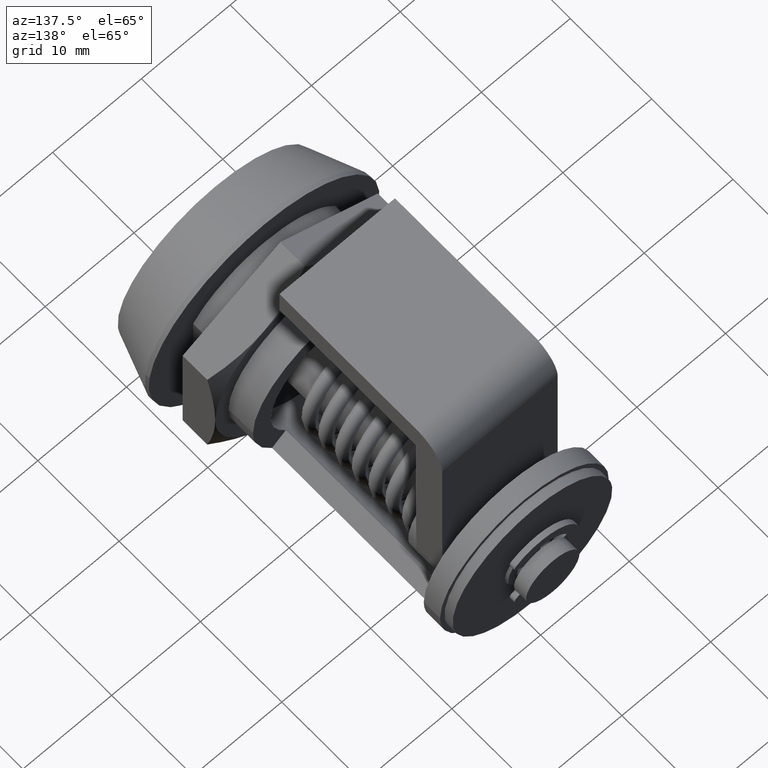
[diagram: clean part render]
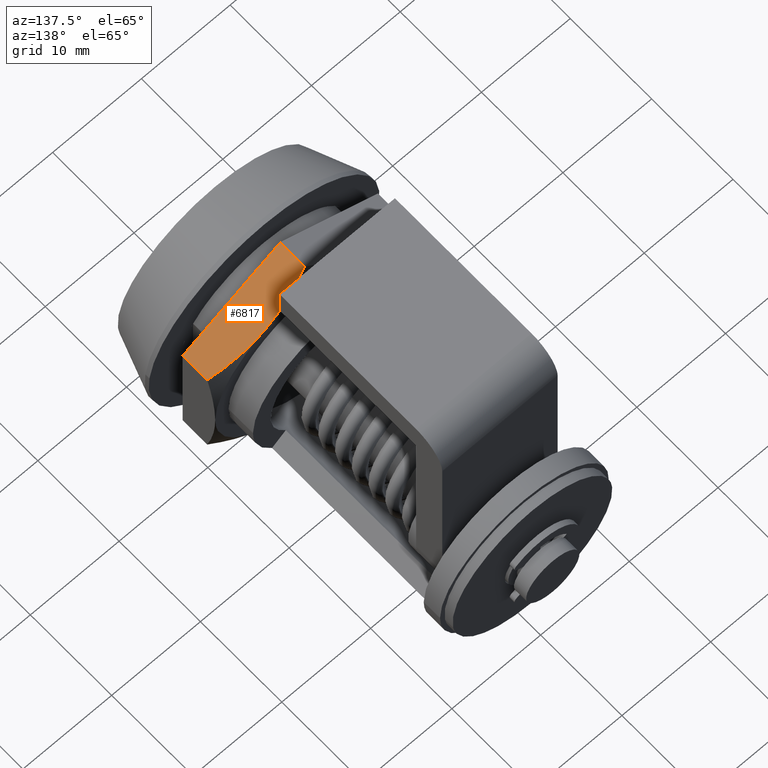
[diagram: same view with one face highlighted and labeled with its STEP entity id]
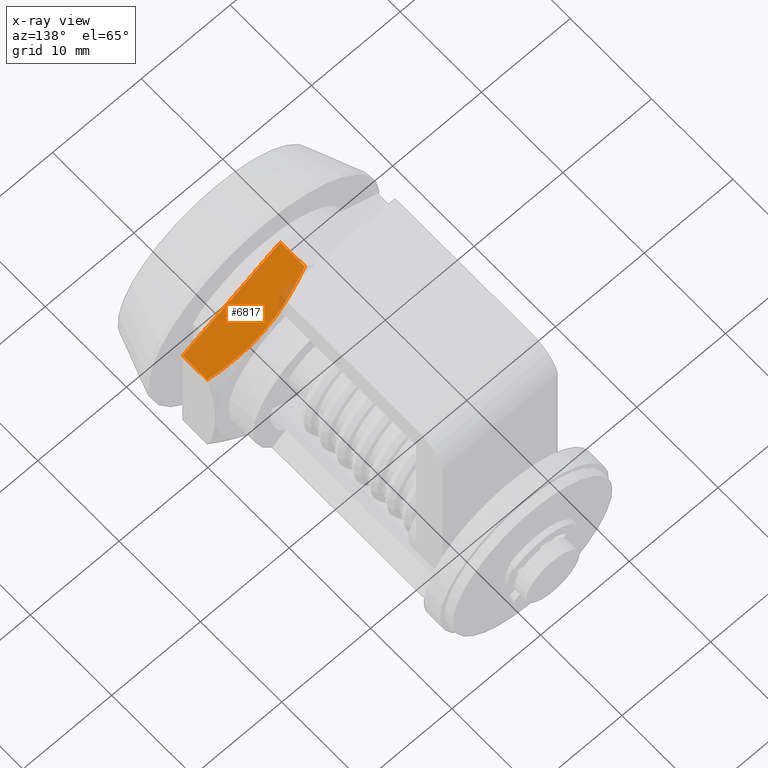
[diagram: x-ray of the same camera — body ghosted, the highlighted face saturated]
A machine part, auxiliary view. The second image highlights one B-rep face of the part: STEP entity #6817.
The next image is the same camera in x-ray: the body ghosted, the highlighted face saturated — about 3% of this face is hidden behind the body in this view.
In plain terms, the highlighted face is a freeform B-spline surface patch.
Its self-contained STEP definition (entity closure, byte-faithful):
#6759=CARTESIAN_POINT('',(-0.548105232915542,7.800200007752882,13.018154625939671));
#6760=CARTESIAN_POINT('',(11.548105331241221,7.800200007752882,6.034404200549367));
#6761=CARTESIAN_POINT('',(-0.548105232915542,12.199800099535580,13.018154625939671));
#6762=CARTESIAN_POINT('',(11.548105331241221,12.199800099535580,6.034404200549367));
#6763=B_SPLINE_SURFACE_WITH_KNOTS('',1,1,((#6759,#6761),(#6760,#6762)),.UNSPECIFIED.,.F.,.F.,.U.,(2,2),(2,2),(0.0,13.967500850780610),(0.0,4.399600091782699),.UNSPECIFIED.);
#6764=CARTESIAN_POINT('',(0.001222795020820,8.000000000000101,12.700999941137200));
#6765=VERTEX_POINT('',#6764);
#6766=CARTESIAN_POINT('',(10.998777204979060,8.000000000000119,6.351558942120260));
#6767=VERTEX_POINT('',#6766);
#6768=CARTESIAN_POINT('',(0.001222795020820,8.000000000000101,12.700999941137200));
#6769=CARTESIAN_POINT('',(10.998777204979060,8.000000000000119,6.351558942120260));
#6770=QUASI_UNIFORM_CURVE('',1,(#6768,#6769),.UNSPECIFIED.,.F.,.U.);
#6771=EDGE_CURVE('',#6765,#6767,#6770,.T.);
#6772=ORIENTED_EDGE('',*,*,#6771,.T.);
#6773=CARTESIAN_POINT('',(10.998777204979060,11.018000000000001,6.351558942120260));
#6774=VERTEX_POINT('',#6773);
#6775=CARTESIAN_POINT('',(10.998777204979060,11.018000000000001,6.351558942120260));
#6776=CARTESIAN_POINT('',(10.998777204979060,8.000000000000119,6.351558942120260));
#6777=QUASI_UNIFORM_CURVE('',1,(#6775,#6776),.UNSPECIFIED.,.F.,.U.);
#6778=EDGE_CURVE('',#6774,#6767,#6777,.T.);
#6779=ORIENTED_EDGE('',*,*,#6778,.F.);
#6780=CARTESIAN_POINT('',(5.499999999999940,12.0,9.526279441628731));
#6781=VERTEX_POINT('',#6780);
#6782=CARTESIAN_POINT('',(5.499999999999940,12.0,9.526279441628731));
#6783=CARTESIAN_POINT('',(5.730271455595420,11.999998713089020,9.393332154753995));
#6784=CARTESIAN_POINT('',(5.961659925944741,11.994392313507859,9.259739959110441));
#6785=CARTESIAN_POINT('',(6.425883957174248,11.971971308882710,8.991720089715795));
#6786=CARTESIAN_POINT('',(6.658938129684140,11.955013493650620,8.857166200481441));
#6787=CARTESIAN_POINT('',(7.355769310619686,11.887887213976059,8.454850530588574));
#6788=CARTESIAN_POINT('',(7.817209531966056,11.821427917682890,8.188437894579330));
#6789=CARTESIAN_POINT('',(9.193317265739321,11.564793864068459,7.393941724051416));
#6790=CARTESIAN_POINT('',(10.099803789611720,11.317585622569320,6.870581485476914));
#6791=CARTESIAN_POINT('',(10.998777204979060,11.018000000000001,6.351558942120262));
#6792=B_SPLINE_CURVE_WITH_KNOTS('',3,(#6782,#6783,#6784,#6785,#6786,#6787,#6788,#6789,#6790,#6791),.UNSPECIFIED.,.F.,.U.,(4,2,2,2,4),(0.500937718883551,0.562499999999999,0.625000000000000,0.750000000000000,1.0),.UNSPECIFIED.);
#6793=EDGE_CURVE('',#6781,#6774,#6792,.T.);
#6794=ORIENTED_EDGE('',*,*,#6793,.F.);
#6795=CARTESIAN_POINT('',(0.001222795020822,11.018000000000001,12.700999941137200));
#6796=VERTEX_POINT('',#6795);
#6797=CARTESIAN_POINT('',(0.001222795020823,11.018000000000001,12.700999941137200));
#6798=CARTESIAN_POINT('',(0.899076741923492,11.317212556301500,12.182623723199990));
#6799=CARTESIAN_POINT('',(1.803473457125797,11.563809640022860,11.660470036223710));
#6800=CARTESIAN_POINT('',(3.174205661515197,11.820017629843250,10.869077429032600));
#6801=CARTESIAN_POINT('',(3.633478220040345,11.886427037365580,10.603916293736701));
#6802=CARTESIAN_POINT('',(4.557368315081435,11.976262740363961,10.070508098663110));
#6803=CARTESIAN_POINT('',(5.021990466089561,11.999651927130650,9.802258374707099));
#6804=CARTESIAN_POINT('',(5.492985253362246,11.999998708657820,9.530329407488305));
#6805=CARTESIAN_POINT('',(5.496492497190114,11.999999989976580,9.528304499320171));
#6806=CARTESIAN_POINT('',(5.499999999999940,12.0,9.526279441628731));
#6807=B_SPLINE_CURVE_WITH_KNOTS('',3,(#6797,#6798,#6799,#6800,#6801,#6802,#6803,#6804,#6805,#6806),.UNSPECIFIED.,.F.,.U.,(4,2,2,2,4),(0.0,0.250000000000000,0.375000000000000,0.499999999999999,0.500937718855025),.UNSPECIFIED.);
#6808=EDGE_CURVE('',#6796,#6781,#6807,.T.);
#6809=ORIENTED_EDGE('',*,*,#6808,.F.);
#6810=CARTESIAN_POINT('',(0.001222795020820,8.000000000000101,12.700999941137200));
#6811=CARTESIAN_POINT('',(0.001222795020822,11.018000000000001,12.700999941137200));
#6812=QUASI_UNIFORM_CURVE('',1,(#6810,#6811),.UNSPECIFIED.,.F.,.U.);
#6813=EDGE_CURVE('',#6765,#6796,#6812,.T.);
#6814=ORIENTED_EDGE('',*,*,#6813,.F.);
#6815=EDGE_LOOP('',(#6772,#6779,#6794,#6809,#6814));
#6816=FACE_OUTER_BOUND('',#6815,.T.);
#6817=ADVANCED_FACE('',(#6816),#6763,.T.);